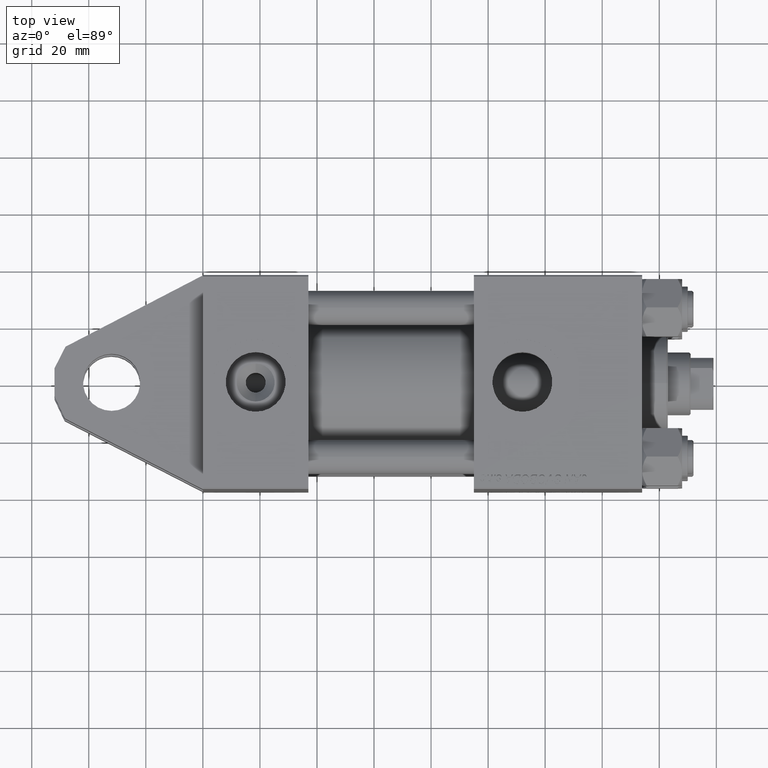
[diagram: clean part render]
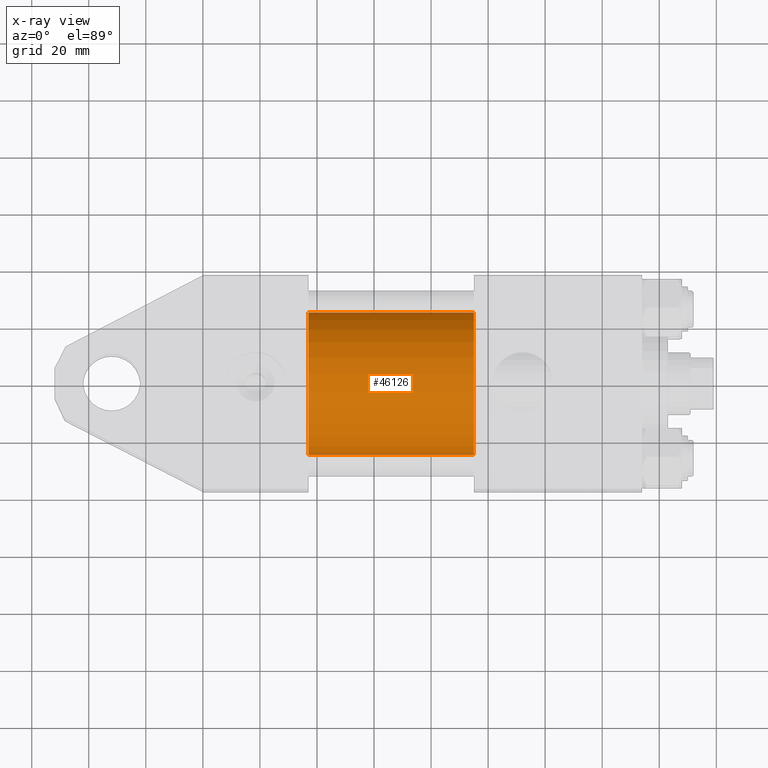
[diagram: x-ray — body ghosted, one internal face saturated and labeled with its STEP entity id]
A machine part, top view, then the same camera in x-ray: the body is ghosted and one INTERNAL B-rep face — a face not visible from any outside direction — is saturated and labeled: STEP entity #46126.
In plain terms, the highlighted cylindrical surface (partial cylindrical patch) has radius 25 mm, axis along (-1, -0, 0).
Its self-contained STEP definition (entity closure, byte-faithful):
#82 = EDGE_CURVE ( 'NONE', #16918, #37885, #1406, .T. ) ;
#121 = VERTEX_POINT ( 'NONE', #22176 ) ;
#1406 = LINE ( 'NONE', #33072, #9527 ) ;
#5719 = CIRCLE ( 'NONE', #49691, 25.00000000000000000 ) ;
#6669 = CYLINDRICAL_SURFACE ( 'NONE', #21760, 25.00000000000000000 ) ;
#7178 = CIRCLE ( 'NONE', #16300, 25.00000000000000000 ) ;
#9498 = CARTESIAN_POINT ( 'NONE',  ( 37.00000000000000000, -3.469446951953614189E-15, 0.000000000000000000 ) ) ;
#9527 = VECTOR ( 'NONE', #42415, 1000.000000000000000 ) ;
#11601 = ORIENTED_EDGE ( 'NONE', *, *, #82, .F. ) ;
#12371 = DIRECTION ( 'NONE',  ( -1.000000000000000000, -0.000000000000000000, -0.000000000000000000 ) ) ;
#13406 = EDGE_CURVE ( 'NONE', #16918, #121, #5719, .T. ) ;
#14832 = DIRECTION ( 'NONE',  ( 0.000000000000000000, 0.000000000000000000, -1.000000000000000000 ) ) ;
#16300 = AXIS2_PLACEMENT_3D ( 'NONE', #9498, #25584, #32612 ) ;
#16918 = VERTEX_POINT ( 'NONE', #20600 ) ;
#20600 = CARTESIAN_POINT ( 'NONE',  ( 95.00000000000000000, -3.469446951953614189E-15, 25.00000000000000000 ) ) ;
#21760 = AXIS2_PLACEMENT_3D ( 'NONE', #25628, #25883, #26393 ) ;
#22176 = CARTESIAN_POINT ( 'NONE',  ( 95.00000000000000000, -4.078299540852317872E-16, -25.00000000000000000 ) ) ;
#25065 = CARTESIAN_POINT ( 'NONE',  ( 37.00000000000000000, -4.078299540852317872E-16, -25.00000000000000000 ) ) ;
#25584 = DIRECTION ( 'NONE',  ( 1.000000000000000000, 0.000000000000000000, 0.000000000000000000 ) ) ;
#25628 = CARTESIAN_POINT ( 'NONE',  ( 95.00000000000000000, -3.469446951953614189E-15, 0.000000000000000000 ) ) ;
#25883 = DIRECTION ( 'NONE',  ( -1.000000000000000000, -0.000000000000000000, -0.000000000000000000 ) ) ;
#26393 = DIRECTION ( 'NONE',  ( 0.000000000000000000, 0.000000000000000000, 1.000000000000000000 ) ) ;
#27670 = LINE ( 'NONE', #35212, #34526 ) ;
#29780 = EDGE_CURVE ( 'NONE', #121, #40697, #27670, .T. ) ;
#31802 = ORIENTED_EDGE ( 'NONE', *, *, #29780, .T. ) ;
#32612 = DIRECTION ( 'NONE',  ( 0.000000000000000000, 0.000000000000000000, -1.000000000000000000 ) ) ;
#33072 = CARTESIAN_POINT ( 'NONE',  ( 95.00000000000000000, -3.469446951953614189E-15, 25.00000000000000000 ) ) ;
#34283 = CARTESIAN_POINT ( 'NONE',  ( 95.00000000000000000, -3.469446951953614189E-15, 0.000000000000000000 ) ) ;
#34526 = VECTOR ( 'NONE', #12371, 1000.000000000000000 ) ;
#35212 = CARTESIAN_POINT ( 'NONE',  ( 95.00000000000000000, -4.078299540852317872E-16, -25.00000000000000000 ) ) ;
#37885 = VERTEX_POINT ( 'NONE', #50137 ) ;
#38308 = EDGE_LOOP ( 'NONE', ( #38586, #31802, #39608, #11601 ) ) ;
#38586 = ORIENTED_EDGE ( 'NONE', *, *, #13406, .T. ) ;
#38710 = DIRECTION ( 'NONE',  ( 1.000000000000000000, 0.000000000000000000, 0.000000000000000000 ) ) ;
#39608 = ORIENTED_EDGE ( 'NONE', *, *, #51392, .F. ) ;
#40697 = VERTEX_POINT ( 'NONE', #25065 ) ;
#41968 = FACE_OUTER_BOUND ( 'NONE', #38308, .T. ) ;
#42415 = DIRECTION ( 'NONE',  ( -1.000000000000000000, -0.000000000000000000, -0.000000000000000000 ) ) ;
#46126 = ADVANCED_FACE ( 'NONE', ( #41968 ), #6669, .F. ) ;
#49691 = AXIS2_PLACEMENT_3D ( 'NONE', #34283, #38710, #14832 ) ;
#50137 = CARTESIAN_POINT ( 'NONE',  ( 37.00000000000000000, -3.469446951953614189E-15, 25.00000000000000000 ) ) ;
#51392 = EDGE_CURVE ( 'NONE', #37885, #40697, #7178, .T. ) ;